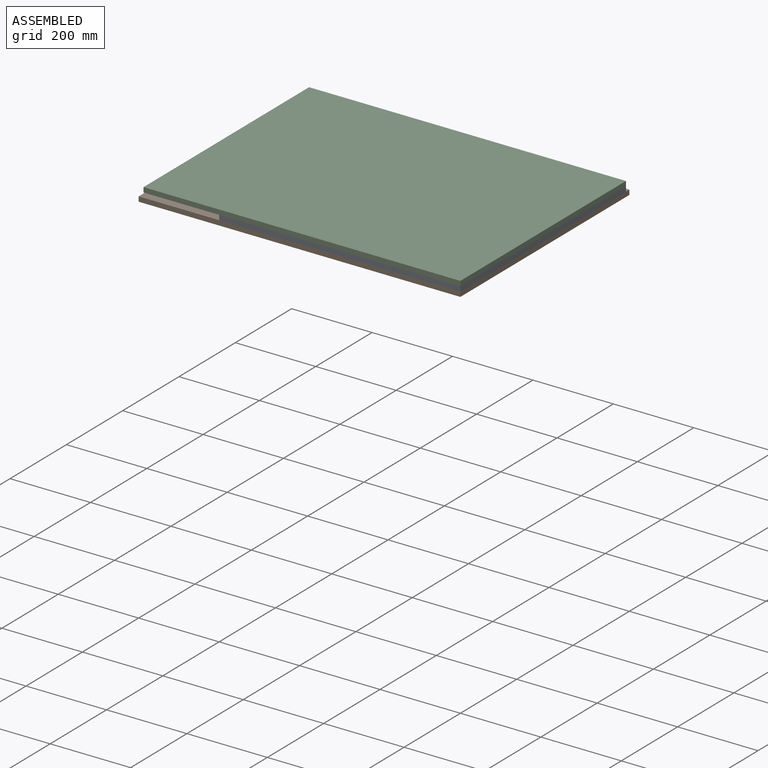
[diagram: assembled view]
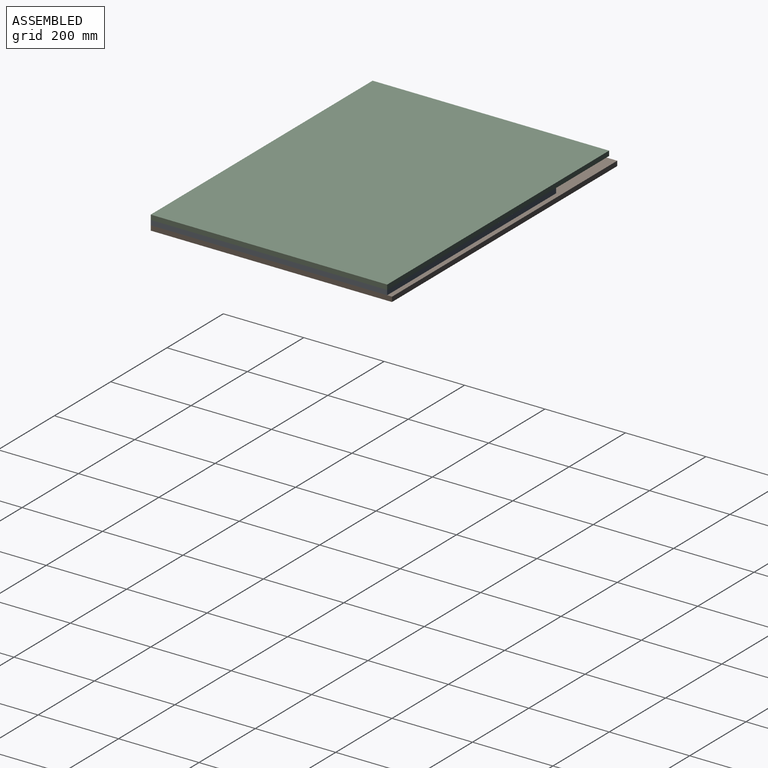
[diagram: assembled view, second angle]
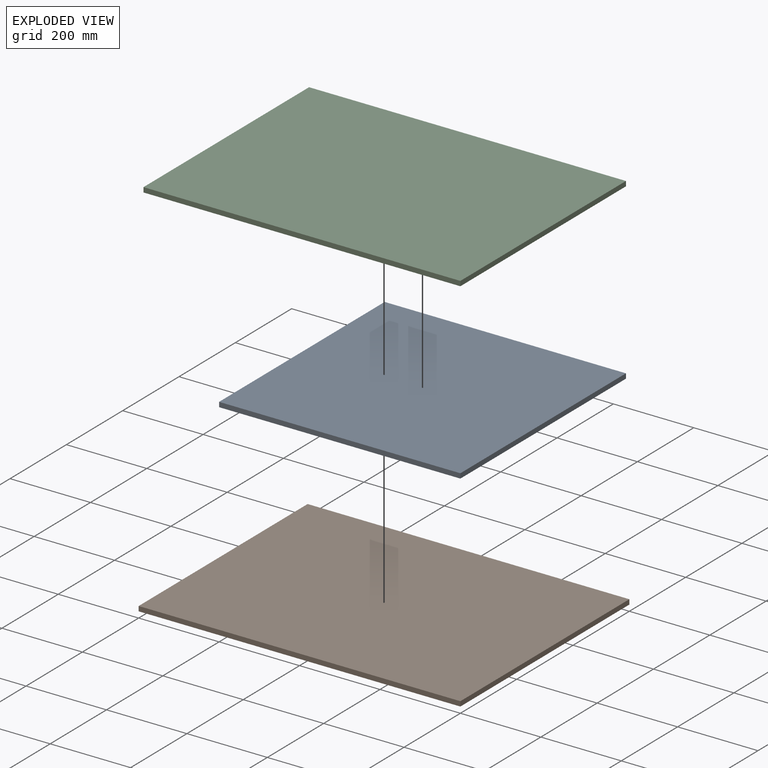
[diagram: exploded view]
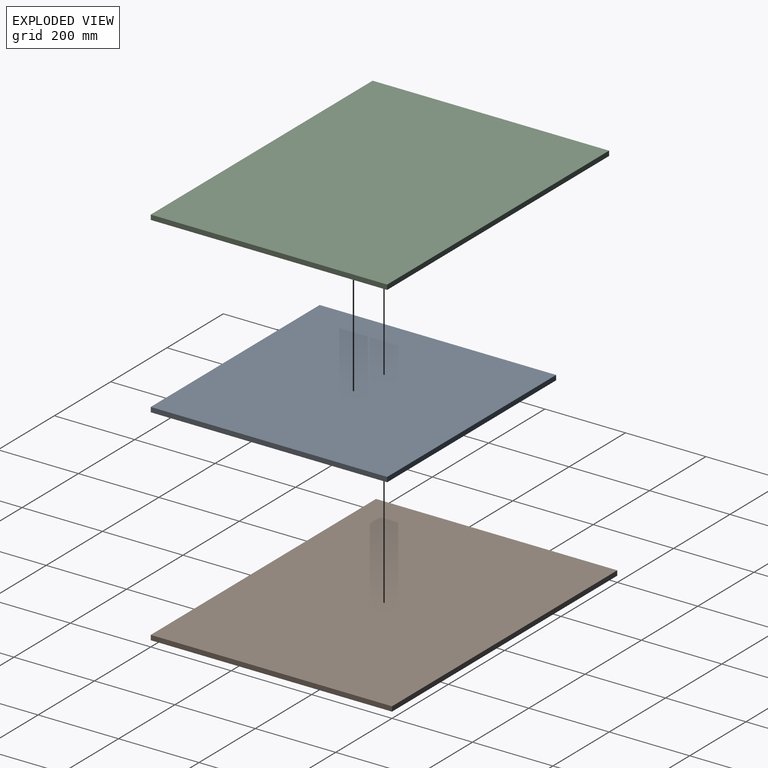
[diagram: exploded view, second angle]
ASSEMBLY  parts=3 mates=2
PART A: 6 faces, bbox 588x600x12 mm
  f0: plane 600x12mm, normal (-1,0,0), area 7200mm2, adj f1,f3,f4,f5
  f1: plane 588x12mm, normal (0,-1,0), area 7056mm2, adj f0,f2,f4,f5
  f2: plane 600x12mm, normal (1,0,0), area 7200mm2, adj f1,f3,f4,f5
  f3: plane 588x12mm, normal (0,1,0), area 7056mm2, adj f0,f2,f4,f5
  f4: plane 600x588mm, normal (0,0,1), area 352800mm2, adj f0,f1,f2,f3
  f5: plane 600x588mm, normal (0,0,-1), area 352800mm2, adj f0,f1,f2,f3
PART B: 6 faces, bbox 800x600x12 mm
  f0: plane 800x12mm, normal (0,1,0), area 9600mm2, adj f1,f3,f4,f5
  f1: plane 600x12mm, normal (-1,0,0), area 7200mm2, adj f0,f2,f4,f5
  f2: plane 800x12mm, normal (0,-1,0), area 9600mm2, adj f1,f3,f4,f5
  f3: plane 600x12mm, normal (1,0,0), area 7200mm2, adj f0,f2,f4,f5
  f4: plane 800x600mm, normal (0,0,1), area 480000mm2, adj f0,f1,f2,f3
  f5: plane 800x600mm, normal (0,0,-1), area 480000mm2, adj f0,f1,f2,f3
PART C: 6 faces, bbox 788x588x12 mm
  f0: plane 588x12mm, normal (1,0,0), area 7056mm2, adj f1,f3,f4,f5
  f1: plane 788x12mm, normal (0,1,0), area 9456mm2, adj f0,f2,f4,f5
  f2: plane 588x12mm, normal (-1,0,0), area 7056mm2, adj f1,f3,f4,f5
  f3: plane 788x12mm, normal (0,-1,0), area 9456mm2, adj f0,f2,f4,f5
  f4: plane 788x588mm, normal (0,0,1), area 463344mm2, adj f0,f1,f2,f3
  f5: plane 788x588mm, normal (0,0,-1), area 463344mm2, adj f0,f1,f2,f3
PLACE A rot(axis=(0,0,1),90deg) t=(-300,294,12)mm
PLACE B t=(-400,300,0)mm
PLACE C t=(-394,294,24)mm
MATE fastened C.f5 <-> A.f4  axis (0,0,-1) through (0,0,24)mm
MATE fastened A.f5 <-> B.f4  axis (0,0,-1) through (0,0,12)mm
